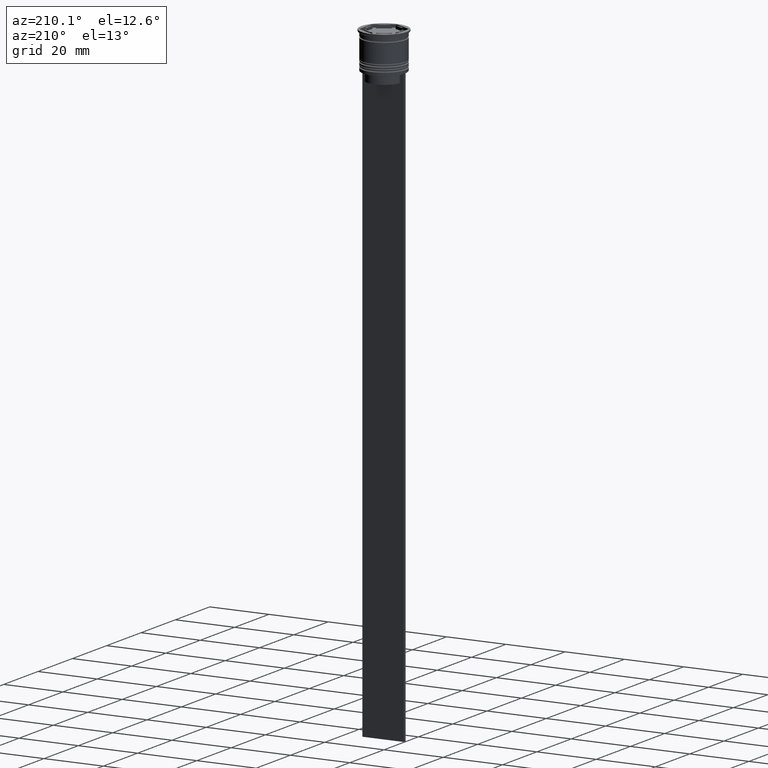
[diagram: clean part render]
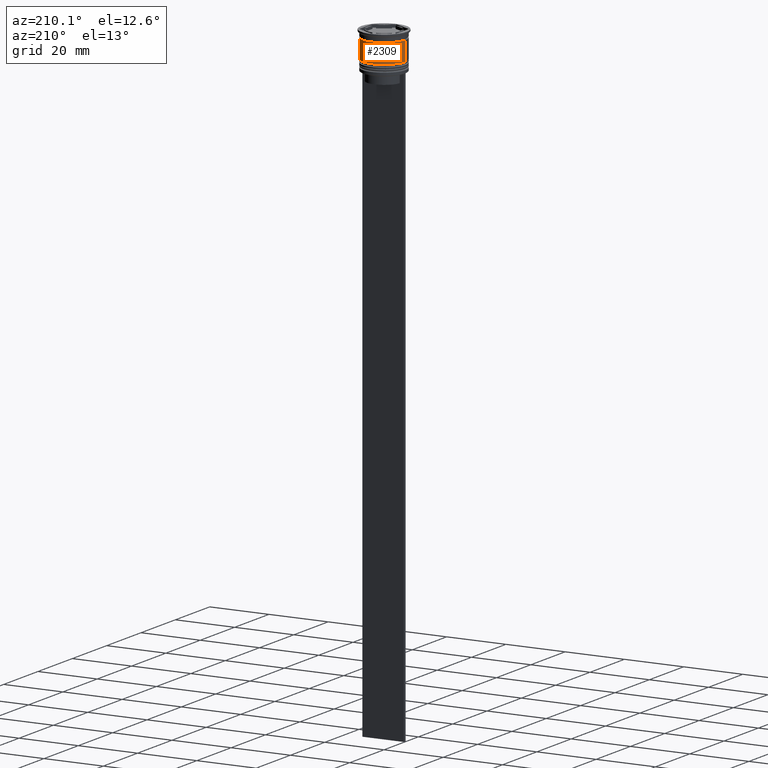
[diagram: same view with one face highlighted and labeled with its STEP entity id]
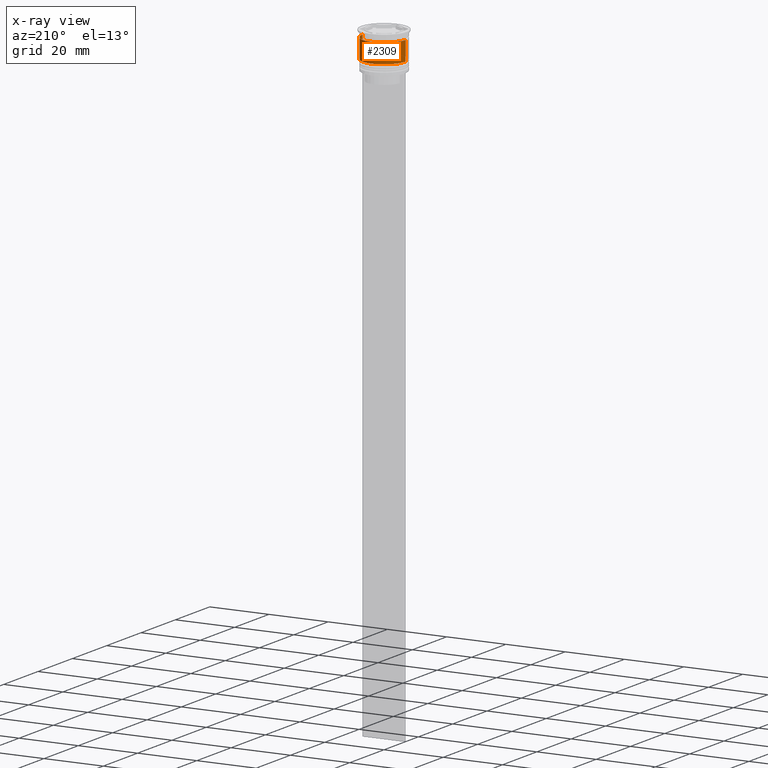
[diagram: x-ray of the same camera — body ghosted, the highlighted face saturated]
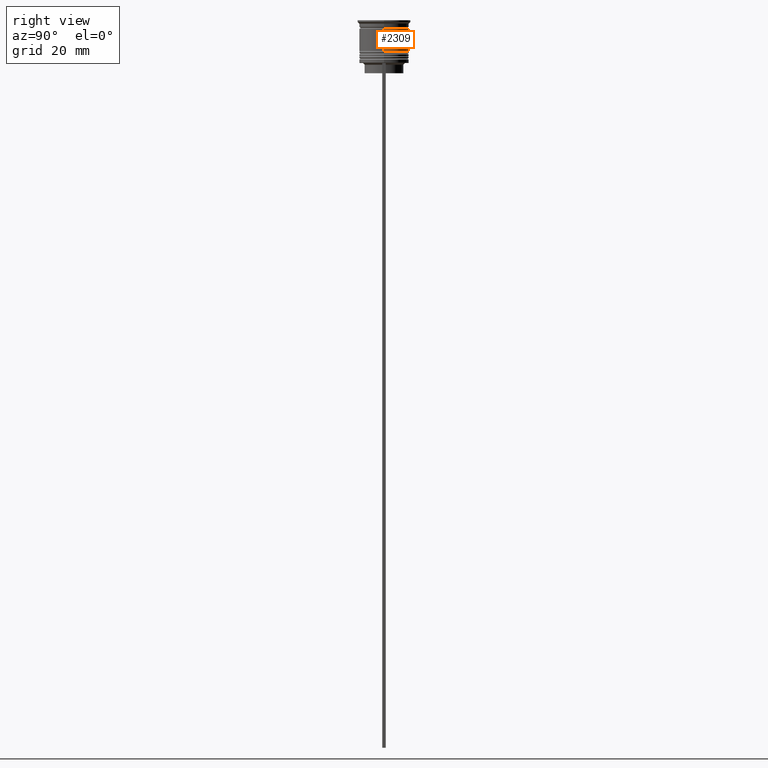
[diagram: same view with one face highlighted and labeled with its STEP entity id]
A machine part, auxiliary view. The second image highlights one B-rep face of the part: STEP entity #2309.
The next image is the same camera in x-ray: the body ghosted, the highlighted face saturated — about 0% of this face is hidden behind the body in this view.
A second angle (right view) of the same face is appended — the face is thin or edge-on in the first view.
In plain terms, the highlighted cylindrical surface (edge-blend (fillet) strip) has radius 7.25 mm, axis along (-0, -0, 1).
Its self-contained STEP definition (entity closure, byte-faithful):
#7 = AXIS2_PLACEMENT_3D ( 'NONE', #1014, #2299, #2132 ) ;
#63 = LINE ( 'NONE', #1468, #908 ) ;
#64 = VERTEX_POINT ( 'NONE', #2242 ) ;
#116 = VERTEX_POINT ( 'NONE', #1213 ) ;
#178 = CARTESIAN_POINT ( 'NONE',  ( -7.249999999999997335, 8.878689293818308102E-16, -2.500000000000000444 ) ) ;
#246 = EDGE_CURVE ( 'NONE', #64, #1268, #882, .T. ) ;
#328 = FACE_OUTER_BOUND ( 'NONE', #2209, .T. ) ;
#426 = ORIENTED_EDGE ( 'NONE', *, *, #671, .T. ) ;
#502 = CARTESIAN_POINT ( 'NONE',  ( 0.000000000000000000, 0.000000000000000000, -9.000000000000001776 ) ) ;
#528 = DIRECTION ( 'NONE',  ( -0.000000000000000000, -0.000000000000000000, 1.000000000000000000 ) ) ;
#671 = EDGE_CURVE ( 'NONE', #116, #64, #2057, .T. ) ;
#882 = LINE ( 'NONE', #1599, #2111 ) ;
#908 = VECTOR ( 'NONE', #1113, 1000.000000000000000 ) ;
#1014 = CARTESIAN_POINT ( 'NONE',  ( 0.000000000000000000, 0.000000000000000000, 0.000000000000000000 ) ) ;
#1103 = DIRECTION ( 'NONE',  ( 1.000000000000000000, 0.000000000000000000, 0.000000000000000000 ) ) ;
#1113 = DIRECTION ( 'NONE',  ( -0.000000000000000000, -0.000000000000000000, 1.000000000000000000 ) ) ;
#1123 = ORIENTED_EDGE ( 'NONE', *, *, #246, .T. ) ;
#1212 = CIRCLE ( 'NONE', #1281, 7.249999999999997335 ) ;
#1213 = CARTESIAN_POINT ( 'NONE',  ( 7.250000000000000888, 0.000000000000000000, -9.000000000000001776 ) ) ;
#1268 = VERTEX_POINT ( 'NONE', #178 ) ;
#1281 = AXIS2_PLACEMENT_3D ( 'NONE', #1317, #1861, #1103 ) ;
#1317 = CARTESIAN_POINT ( 'NONE',  ( 0.000000000000000000, 0.000000000000000000, -2.500000000000000444 ) ) ;
#1346 = CARTESIAN_POINT ( 'NONE',  ( 7.249999999999997335, 0.000000000000000000, -2.500000000000000444 ) ) ;
#1410 = AXIS2_PLACEMENT_3D ( 'NONE', #502, #528, #1964 ) ;
#1420 = DIRECTION ( 'NONE',  ( -0.000000000000000000, -0.000000000000000000, 1.000000000000000000 ) ) ;
#1437 = VERTEX_POINT ( 'NONE', #1346 ) ;
#1468 = CARTESIAN_POINT ( 'NONE',  ( 7.249999999999999112, 0.000000000000000000, 0.000000000000000000 ) ) ;
#1537 = ORIENTED_EDGE ( 'NONE', *, *, #1762, .F. ) ;
#1599 = CARTESIAN_POINT ( 'NONE',  ( -7.249999999999999112, 8.878689293818310074E-16, 0.000000000000000000 ) ) ;
#1721 = EDGE_CURVE ( 'NONE', #116, #1437, #63, .T. ) ;
#1762 = EDGE_CURVE ( 'NONE', #1437, #1268, #1212, .T. ) ;
#1861 = DIRECTION ( 'NONE',  ( -0.000000000000000000, -0.000000000000000000, 1.000000000000000000 ) ) ;
#1948 = CYLINDRICAL_SURFACE ( 'NONE', #7, 7.249999999999999112 ) ;
#1964 = DIRECTION ( 'NONE',  ( 1.000000000000000000, 0.000000000000000000, 0.000000000000000000 ) ) ;
#2057 = CIRCLE ( 'NONE', #1410, 7.250000000000000888 ) ;
#2111 = VECTOR ( 'NONE', #1420, 1000.000000000000000 ) ;
#2126 = ORIENTED_EDGE ( 'NONE', *, *, #1721, .F. ) ;
#2132 = DIRECTION ( 'NONE',  ( 1.000000000000000000, 0.000000000000000000, 0.000000000000000000 ) ) ;
#2209 = EDGE_LOOP ( 'NONE', ( #426, #1123, #1537, #2126 ) ) ;
#2242 = CARTESIAN_POINT ( 'NONE',  ( -7.250000000000000888, 8.878689293818312046E-16, -9.000000000000001776 ) ) ;
#2299 = DIRECTION ( 'NONE',  ( -0.000000000000000000, -0.000000000000000000, 1.000000000000000000 ) ) ;
#2309 = ADVANCED_FACE ( 'NONE', ( #328 ), #1948, .T. ) ;